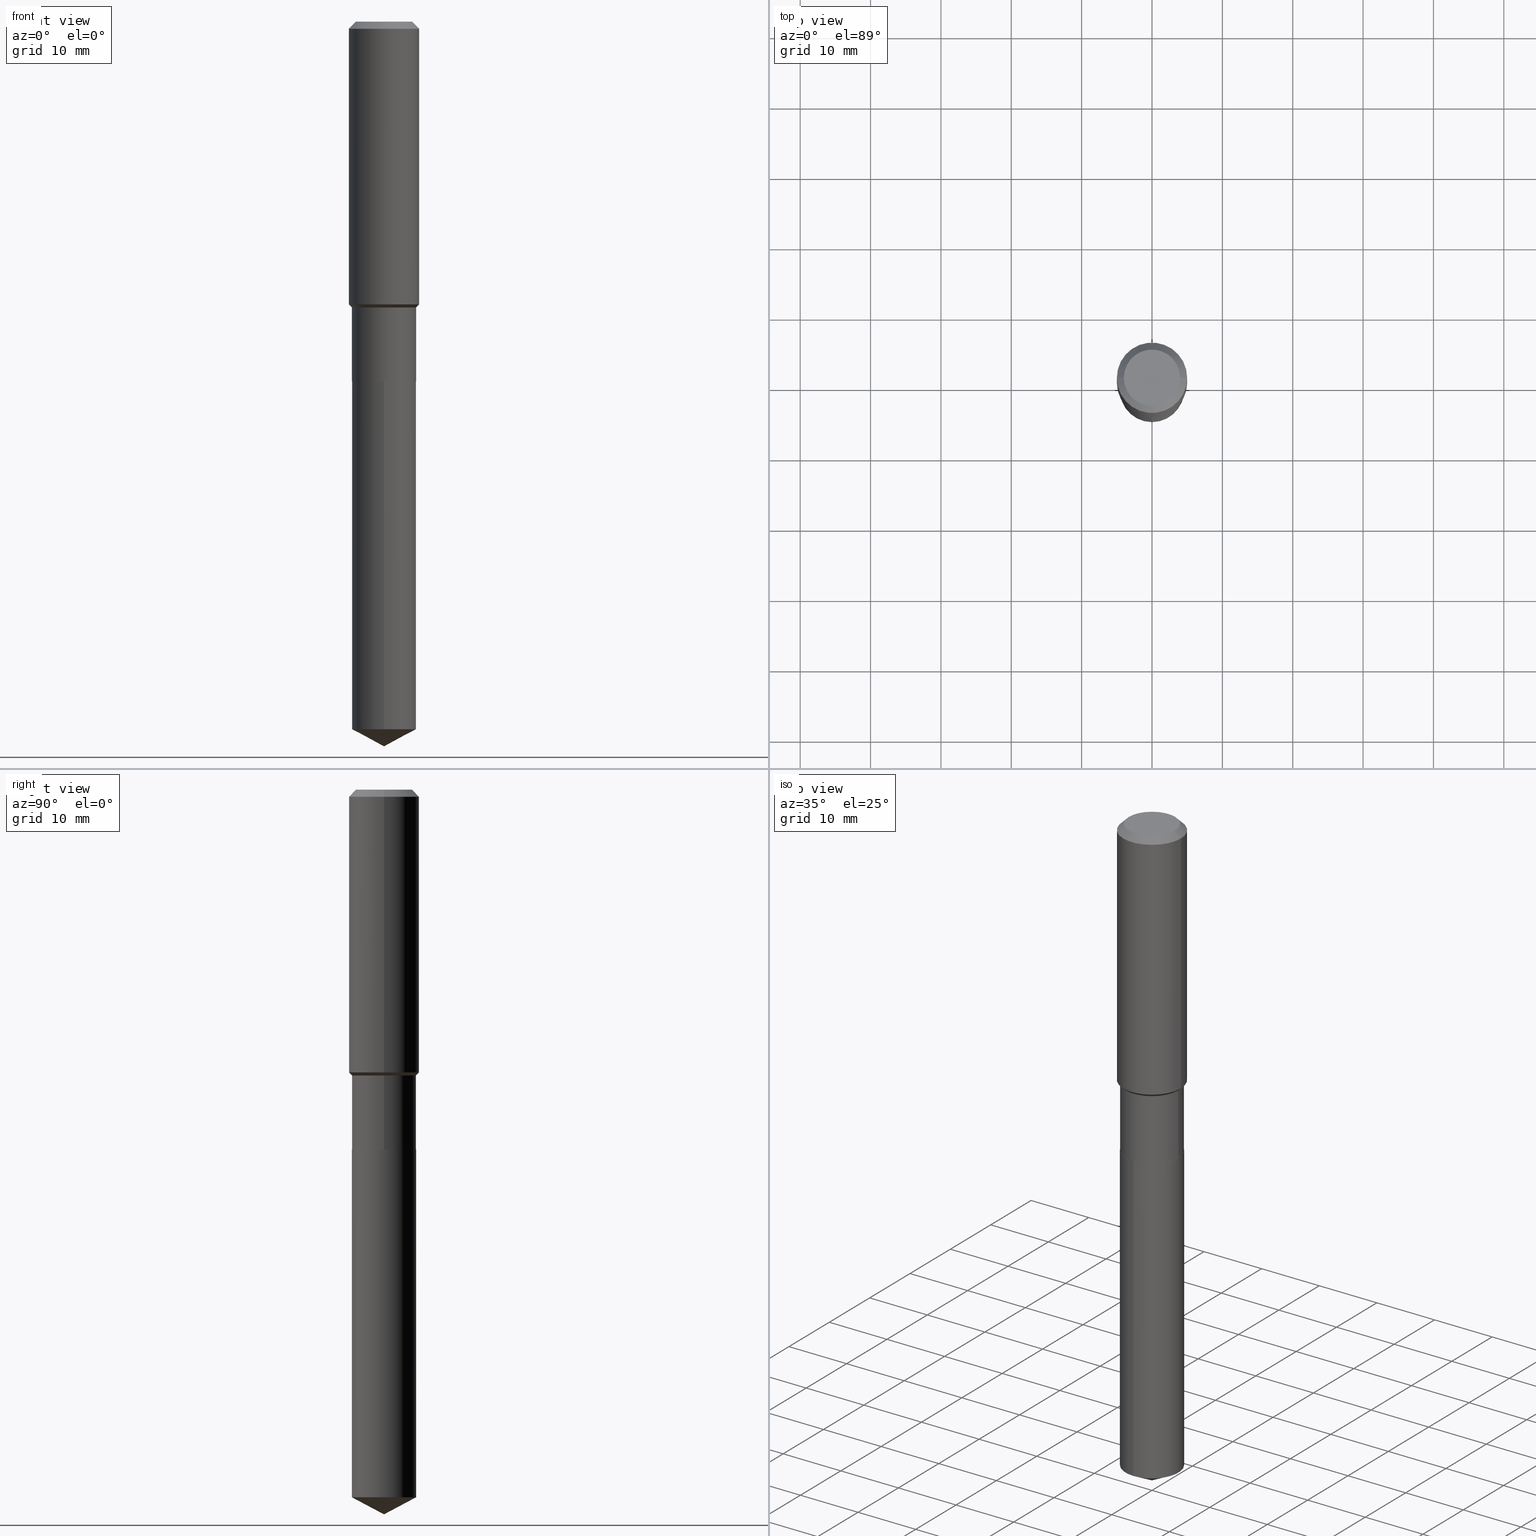
[diagram: canonical four-view strip — front | top / right | iso, engineering-drawing reading convention]
A machine part, canonical four-view strip (front | top / right | iso — engineering-drawing reading convention). The complete STEP part file that produces these views, byte-faithful:
ISO-10303-21;
HEADER;
FILE_DESCRIPTION (( 'STEP AP203' ),
    '1' );
FILE_NAME ('55179.STEP',
    '2024-04-24T16:55:08',
    ( '' ),
    ( '' ),
    'SwSTEP 2.0',
    'SolidWorks 2023',
    '' );
FILE_SCHEMA (( 'CONFIG_CONTROL_DESIGN' ));
ENDSEC;

DATA;
#1 = DIRECTION ( 'NONE',  ( -2.445537497902415833E-29, 3.491382968394312088E-15, 1.000000000000000000 ) ) ;
#2 = FACE_OUTER_BOUND ( 'NONE', #330, .T. ) ;
#3 = AXIS2_PLACEMENT_3D ( 'NONE', #290, #67, #219 ) ;
#4 = VECTOR ( 'NONE', #102, 39.37007874015748854 ) ;
#5 = CARTESIAN_POINT ( 'NONE',  ( -0.1574800000000000089, 1.168406772637159618E-15, 3.855188123707939751E-18 ) ) ;
#6 = FACE_OUTER_BOUND ( 'NONE', #246, .T. ) ;
#7 = EDGE_LOOP ( 'NONE', ( #128, #312, #198, #327 ) ) ;
#8 = EDGE_CURVE ( 'NONE', #383, #229, #275, .T. ) ;
#9 = ORIENTED_EDGE ( 'NONE', *, *, #104, .F. ) ;
#10 = AXIS2_PLACEMENT_3D ( 'NONE', #332, #336, #286 ) ;
#11 = FACE_OUTER_BOUND ( 'NONE', #125, .T. ) ;
#12 = EDGE_LOOP ( 'NONE', ( #277, #386, #78, #232 ) ) ;
#13 = EDGE_CURVE ( 'NONE', #380, #49, #65, .T. ) ;
#14 = EDGE_LOOP ( 'NONE', ( #308, #29, #270, #351 ) ) ;
#15 = CC_DESIGN_PERSON_AND_ORGANIZATION_ASSIGNMENT ( #368, #257, ( #379 ) ) ;
#16 = CARTESIAN_POINT ( 'NONE',  ( 3.868609377944575708E-29, -5.523348903982912472E-15, -1.581949999999999523 ) ) ;
#17 = EDGE_LOOP ( 'NONE', ( #397, #77, #426, #126 ) ) ;
#18 = LINE ( 'NONE', #63, #150 ) ;
#19 = CARTESIAN_POINT ( 'NONE',  ( 3.868609377944575708E-29, -5.523348903982912472E-15, -1.581949999999999523 ) ) ;
#20 = VECTOR ( 'NONE', #62, 39.37007874015748143 ) ;
#21 = EDGE_CURVE ( 'NONE', #205, #348, #305, .T. ) ;
#22 = LINE ( 'NONE', #174, #335 ) ;
#23 = DIRECTION ( 'NONE',  ( -1.000000000000000000, 6.982962677686265922E-15, -4.876176775795935793E-29 ) ) ;
#24 = CARTESIAN_POINT ( 'NONE',  ( 1.276845296160997054E-15, 0.1796999999999929765, -2.012399999999999967 ) ) ;
#25 = DIRECTION ( 'NONE',  ( -2.445537497902415833E-29, 3.491382968394312088E-15, 1.000000000000000000 ) ) ;
#26 = DIRECTION ( 'NONE',  ( 1.000000000000000000, -6.982962677686267499E-15, 0.000000000000000000 ) ) ;
#27 = CONICAL_SURFACE ( 'NONE', #73, 0.1796999999999999709, 0.7853981633974522758 ) ;
#28 = DATE_AND_TIME ( #31, #267 ) ;
#29 = ORIENTED_EDGE ( 'NONE', *, *, #420, .T. ) ;
#30 = DIRECTION ( 'NONE',  ( 6.273719981627756610E-15, 0.8829475928589284317, 0.4694715627858879192 ) ) ;
#31 = CALENDAR_DATE ( 2024, 24, 4 ) ;
#32 = CARTESIAN_POINT ( 'NONE',  ( 3.910549167970651288E-29, -5.583227808944072017E-15, -1.599099999999999522 ) ) ;
#33 = VECTOR ( 'NONE', #140, 39.37007874015748143 ) ;
#34 = PERSON_AND_ORGANIZATION ( #365, #40 ) ;
#35 = DIRECTION ( 'NONE',  ( 0.7071067811865503483, -2.468850131082286248E-15, 0.7071067811865446862 ) ) ;
#36 = DIRECTION ( 'NONE',  ( -2.445468806185136597E-29, 3.491481338843145583E-15, 1.000000000000000000 ) ) ;
#37 = EDGE_CURVE ( 'NONE', #428, #49, #284, .T. ) ;
#38 = CARTESIAN_POINT ( 'NONE',  ( 9.627810689950954155E-31, -1.374596203102556547E-16, -0.03937000000000029365 ) ) ;
#39 = VERTEX_POINT ( 'NONE', #240 ) ;
#40 = ORGANIZATION ( 'UNSPECIFIED', 'UNSPECIFIED', '' ) ;
#41 = LINE ( 'NONE', #127, #354 ) ;
#42 = ORIENTED_EDGE ( 'NONE', *, *, #157, .F. ) ;
#43 = ORIENTED_EDGE ( 'NONE', *, *, #424, .T. ) ;
#44 = UNCERTAINTY_MEASURE_WITH_UNIT (LENGTH_MEASURE( 1.000000000000000082E-05 ), #283, 'distance_accuracy_value', 'NONE');
#45 = ORIENTED_EDGE ( 'NONE', *, *, #21, .T. ) ;
#46 = ADVANCED_FACE ( 'NONE', ( #357 ), #103, .F. ) ;
#47 = CIRCLE ( 'NONE', #170, 0.1796999999999999986 ) ;
#48 = LOCAL_TIME ( 12, 55, 8.000000000000000000, #454 ) ;
#49 = VERTEX_POINT ( 'NONE', #474 ) ;
#50 = ORIENTED_EDGE ( 'NONE', *, *, #325, .F. ) ;
#51 = EDGE_CURVE ( 'NONE', #144, #346, #173, .T. ) ;
#52 = CYLINDRICAL_SURFACE ( 'NONE', #463, 0.1968500000000001082 ) ;
#53 = DIRECTION ( 'NONE',  ( -6.982962677686265922E-15, -1.000000000000000000, 3.040454083098790380E-15 ) ) ;
#54 = CARTESIAN_POINT ( 'NONE',  ( 3.910549167970651288E-29, -5.583227808944072017E-15, -1.599099999999999522 ) ) ;
#55 = EDGE_CURVE ( 'NONE', #348, #205, #47, .T. ) ;
#56 = ORIENTED_EDGE ( 'NONE', *, *, #104, .T. ) ;
#57 = AXIS2_PLACEMENT_3D ( 'NONE', #202, #347, #278 ) ;
#58 = PRODUCT_DEFINITION_FORMATION_WITH_SPECIFIED_SOURCE ( 'ANY', '', #143, .NOT_KNOWN. ) ;
#59 = DIRECTION ( 'NONE',  ( 1.000000000000000000, -6.982962677686266711E-15, 4.876176775795935793E-29 ) ) ;
#60 = DIRECTION ( 'NONE',  ( -6.982962677686265922E-15, -1.000000000000000000, 3.040454083098790380E-15 ) ) ;
#61 = DIRECTION ( 'NONE',  ( -2.445537497902415833E-29, 3.491382968394311693E-15, 1.000000000000000000 ) ) ;
#62 = DIRECTION ( 'NONE',  ( 0.7071067811865450192, -7.319954787623246579E-15, -0.7071067811865500152 ) ) ;
#63 = CARTESIAN_POINT ( 'NONE',  ( -0.1968500000000000250, 1.237136582792286225E-15, -0.03937000000000029365 ) ) ;
#64 = DIRECTION ( 'NONE',  ( -2.445468806185136597E-29, 3.491481338843145583E-15, 1.000000000000000000 ) ) ;
#65 = CIRCLE ( 'NONE', #188, 0.1968500000000000250 ) ;
#66 = ADVANCED_FACE ( 'NONE', ( #353 ), #394, .T. ) ;
#67 = DIRECTION ( 'NONE',  ( -2.445537497902415833E-29, 3.491382968394312088E-15, 1.000000000000000000 ) ) ;
#68 = DATE_TIME_ROLE ( 'creation_date' ) ;
#69 = CYLINDRICAL_SURFACE ( 'NONE', #201, 0.1796999999999999986 ) ;
#70 = COORDINATED_UNIVERSAL_TIME_OFFSET ( 5, 0, .BEHIND. ) ;
#71 = FACE_OUTER_BOUND ( 'NONE', #317, .T. ) ;
#72 = PRODUCT_RELATED_PRODUCT_CATEGORY ( 'detail', '', ( #143 ) ) ;
#73 = AXIS2_PLACEMENT_3D ( 'NONE', #75, #490, #153 ) ;
#74 = AXIS2_PLACEMENT_3D ( 'NONE', #54, #393, #142 ) ;
#75 = CARTESIAN_POINT ( 'NONE',  ( 3.910549167970651288E-29, -5.583227808944072017E-15, -1.599099999999999522 ) ) ;
#76 = DIRECTION ( 'NONE',  ( -2.445468806185136597E-29, 3.491481338843145583E-15, 1.000000000000000000 ) ) ;
#77 = ORIENTED_EDGE ( 'NONE', *, *, #300, .F. ) ;
#78 = ORIENTED_EDGE ( 'NONE', *, *, #471, .F. ) ;
#79 = AXIS2_PLACEMENT_3D ( 'NONE', #38, #341, #252 ) ;
#80 = AXIS2_PLACEMENT_3D ( 'NONE', #478, #166, #99 ) ;
#81 = EDGE_LOOP ( 'NONE', ( #45, #364 ) ) ;
#82 = EDGE_CURVE ( 'NONE', #144, #322, #333, .T. ) ;
#83 = ORIENTED_EDGE ( 'NONE', *, *, #101, .T. ) ;
#84 = ORIENTED_EDGE ( 'NONE', *, *, #21, .F. ) ;
#85 = CC_DESIGN_PERSON_AND_ORGANIZATION_ASSIGNMENT ( #145, #220, ( #58 ) ) ;
#86 = AXIS2_PLACEMENT_3D ( 'NONE', #338, #1, #340 ) ;
#87 = AXIS2_PLACEMENT_3D ( 'NONE', #316, #207, #210 ) ;
#88 = ORIENTED_EDGE ( 'NONE', *, *, #382, .T. ) ;
#89 = CARTESIAN_POINT ( 'NONE',  ( 9.916378083570590568E-29, -1.415795385822140002E-14, -4.054999999999999716 ) ) ;
#90 = DIRECTION ( 'NONE',  ( -2.445468806185136597E-29, 3.491481338843145583E-15, 1.000000000000000000 ) ) ;
#91 = EDGE_CURVE ( 'NONE', #390, #459, #180, .T. ) ;
#92 = PLANE ( 'NONE',  #196 ) ;
#93 = DIRECTION ( 'NONE',  ( -2.445468806185136597E-29, 3.491481338843145583E-15, 1.000000000000000000 ) ) ;
#94 = ADVANCED_BREP_SHAPE_REPRESENTATION ( '55179', ( #247, #255, #481 ), #324 ) ;
#95 = CARTESIAN_POINT ( 'NONE',  ( 1.276845296160949131E-15, 0.1796999999999929765, -2.012399999999999967 ) ) ;
#96 = AXIS2_PLACEMENT_3D ( 'NONE', #476, #97, #60 ) ;
#97 = DIRECTION ( 'NONE',  ( -2.445537497902415833E-29, 3.491382968394312088E-15, 1.000000000000000000 ) ) ;
#98 = LOCAL_TIME ( 12, 55, 8.000000000000000000, #152 ) ;
#99 = DIRECTION ( 'NONE',  ( 1.000000000000000000, -6.982962677686264344E-15, 0.000000000000000000 ) ) ;
#100 = DIRECTION ( 'NONE',  ( -2.445468806185136597E-29, 3.491481338843145583E-15, 1.000000000000000000 ) ) ;
#101 = EDGE_CURVE ( 'NONE', #49, #380, #461, .T. ) ;
#102 = DIRECTION ( 'NONE',  ( -6.165590087286826563E-15, -0.8829475928589252121, 0.4694715627858941365 ) ) ;
#103 = PLANE ( 'NONE',  #370 ) ;
#104 = EDGE_CURVE ( 'NONE', #229, #39, #289, .T. ) ;
#105 = APPROVAL_STATUS ( 'not_yet_approved' ) ;
#106 = CARTESIAN_POINT ( 'NONE',  ( 0.1968500000000001082, -1.374596203102542397E-15, 9.598753983154305062E-30 ) ) ;
#107 = CIRCLE ( 'NONE', #3, 0.1796999999999999986 ) ;
#108 = CC_DESIGN_APPROVAL ( #376, ( #58 ) ) ;
#109 = EDGE_CURVE ( 'NONE', #419, #423, #387, .T. ) ;
#110 = APPROVAL_STATUS ( 'not_yet_approved' ) ;
#111 = FACE_OUTER_BOUND ( 'NONE', #233, .T. ) ;
#112 = DATE_AND_TIME ( #263, #131 ) ;
#113 = FACE_OUTER_BOUND ( 'NONE', #399, .T. ) ;
#114 = ORIENTED_EDGE ( 'NONE', *, *, #261, .F. ) ;
#115 = COORDINATED_UNIVERSAL_TIME_OFFSET ( 5, 0, .BEHIND. ) ;
#116 = CARTESIAN_POINT ( 'NONE',  ( 0.1796999999999999709, -6.838066202124294536E-15, -1.599099999999999522 ) ) ;
#117 = AXIS2_PLACEMENT_3D ( 'NONE', #32, #444, #450 ) ;
#118 = CC_DESIGN_APPROVAL ( #401, ( #215 ) ) ;
#119 = APPROVAL_STATUS ( 'not_yet_approved' ) ;
#120 = DIRECTION ( 'NONE',  ( 1.000000000000000000, -6.982962677686264344E-15, 0.000000000000000000 ) ) ;
#121 = ORIENTED_EDGE ( 'NONE', *, *, #157, .T. ) ;
#122 = ORIENTED_EDGE ( 'NONE', *, *, #230, .T. ) ;
#123 = CIRCLE ( 'NONE', #315, 0.1574800000000000089 ) ;
#124 = DIRECTION ( 'NONE',  ( 1.000000000000000000, -6.982962677686265922E-15, 4.876223630392693006E-29 ) ) ;
#125 = EDGE_LOOP ( 'NONE', ( #121, #211, #84, #479 ) ) ;
#126 = ORIENTED_EDGE ( 'NONE', *, *, #13, .T. ) ;
#127 = CARTESIAN_POINT ( 'NONE',  ( -0.1796999999999999986, 1.276845296160900024E-15, -8.839326357188065585E-30 ) ) ;
#128 = ORIENTED_EDGE ( 'NONE', *, *, #82, .T. ) ;
#129 = CONICAL_SURFACE ( 'NONE', #86, 74.04434902938309904, 1.082104136236484049 ) ;
#130 =( LENGTH_UNIT ( ) NAMED_UNIT ( * ) SI_UNIT ( $, .METRE. ) );
#131 = LOCAL_TIME ( 12, 55, 8.000000000000000000, #189 ) ;
#132 = ORIENTED_EDGE ( 'NONE', *, *, #382, .F. ) ;
#133 = EDGE_CURVE ( 'NONE', #467, #390, #149, .T. ) ;
#134 = DIRECTION ( 'NONE',  ( 1.000000000000000000, -6.982962677686266711E-15, 4.876176775795935793E-29 ) ) ;
#135 = CARTESIAN_POINT ( 'NONE',  ( 4.920038691163875479E-29, -7.024511305618523739E-15, -2.011899999999999800 ) ) ;
#136 = CARTESIAN_POINT ( 'NONE',  ( 0.1574800000000000089, -1.284169937930321189E-15, 3.855188123724205385E-18 ) ) ;
#137 = CARTESIAN_POINT ( 'NONE',  ( 4.921261425566967720E-29, -7.026257046287944454E-15, -2.012399999999999523 ) ) ;
#138 = FACE_OUTER_BOUND ( 'NONE', #440, .T. ) ;
#139 = VECTOR ( 'NONE', #256, 39.37007874015748143 ) ;
#140 = DIRECTION ( 'NONE',  ( -0.7071067811865503483, 7.493145998870363626E-15, 0.7071067811865446862 ) ) ;
#141 = DIMENSIONAL_EXPONENTS ( 1.000000000000000000, 0.000000000000000000, 0.000000000000000000, 0.000000000000000000, 0.000000000000000000, 0.000000000000000000, 0.000000000000000000 ) ;
#142 = DIRECTION ( 'NONE',  ( 1.000000000000000000, -6.982962677686269077E-15, 0.000000000000000000 ) ) ;
#143 = PRODUCT ( '55179', '55179', '', ( #192 ) ) ;
#144 = VERTEX_POINT ( 'NONE', #221 ) ;
#145 = PERSON_AND_ORGANIZATION ( #365, #40 ) ;
#146 = DIRECTION ( 'NONE',  ( 2.445468806185136597E-29, -3.491481338843145583E-15, -1.000000000000000000 ) ) ;
#147 = EDGE_CURVE ( 'NONE', #346, #39, #190, .T. ) ;
#148 = APPLICATION_PROTOCOL_DEFINITION ( 'international standard', 'config_control_design', 1994, #400 ) ;
#149 = LINE ( 'NONE', #223, #224 ) ;
#150 = VECTOR ( 'NONE', #391, 39.37007874015748143 ) ;
#151 = ADVANCED_FACE ( 'NONE', ( #405 ), #258, .F. ) ;
#152 = COORDINATED_UNIVERSAL_TIME_OFFSET ( 5, 0, .BEHIND. ) ;
#153 = DIRECTION ( 'NONE',  ( 1.000000000000000000, -6.982962677686269077E-15, 0.000000000000000000 ) ) ;
#154 = DIRECTION ( 'NONE',  ( 1.000000000000000000, 0.000000000000000000, 0.000000000000000000 ) ) ;
#155 = DIRECTION ( 'NONE',  ( 1.000000000000000000, -6.982962677686265922E-15, 4.876176775795935232E-29 ) ) ;
#156 = CALENDAR_DATE ( 2024, 24, 4 ) ;
#157 = EDGE_CURVE ( 'NONE', #459, #390, #107, .T. ) ;
#158 = CARTESIAN_POINT ( 'NONE',  ( 0.1791999999999999982, -8.277603958129323177E-15, -2.012399999999999078 ) ) ;
#159 = CARTESIAN_POINT ( 'NONE',  ( 4.921261425566967159E-29, -7.026257046287943665E-15, -2.012399999999999078 ) ) ;
#160 = ORIENTED_EDGE ( 'NONE', *, *, #109, .F. ) ;
#161 = ORIENTED_EDGE ( 'NONE', *, *, #415, .T. ) ;
#162 = AXIS2_PLACEMENT_3D ( 'NONE', #279, #90, #178 ) ;
#163 = ADVANCED_FACE ( 'NONE', ( #2 ), #187, .T. ) ;
#164 = ORIENTED_EDGE ( 'NONE', *, *, #91, .F. ) ;
#165 = ORIENTED_EDGE ( 'NONE', *, *, #133, .F. ) ;
#166 = DIRECTION ( 'NONE',  ( -2.445468806185136597E-29, 3.491481338843145583E-15, 1.000000000000000000 ) ) ;
#167 = DESIGN_CONTEXT ( 'detailed design', #427, 'design' ) ;
#168 = CC_DESIGN_PERSON_AND_ORGANIZATION_ASSIGNMENT ( #489, #449, ( #215 ) ) ;
#169 = EDGE_LOOP ( 'NONE', ( #418, #160 ) ) ;
#170 = AXIS2_PLACEMENT_3D ( 'NONE', #137, #25, #432 ) ;
#171 = DIRECTION ( 'NONE',  ( -0.7071067811868130271, 7.493145998871311837E-15, 0.7071067811862817853 ) ) ;
#172 = LOCAL_TIME ( 12, 55, 8.000000000000000000, #115 ) ;
#173 = LINE ( 'NONE', #249, #209 ) ;
#174 = CARTESIAN_POINT ( 'NONE',  ( -0.1968500000000001082, 1.398703375343757985E-15, -9.682923725166787881E-30 ) ) ;
#175 = ORIENTED_EDGE ( 'NONE', *, *, #466, .T. ) ;
#176 = ADVANCED_FACE ( 'NONE', ( #448 ), #27, .T. ) ;
#177 = LINE ( 'NONE', #89, #4 ) ;
#178 = DIRECTION ( 'NONE',  ( 1.000000000000000000, -6.982962677686265922E-15, 4.876176775795935232E-29 ) ) ;
#179 = ADVANCED_FACE ( 'NONE', ( #111 ), #487, .T. ) ;
#180 = CIRCLE ( 'NONE', #437, 0.1796999999999999986 ) ;
#181 = CARTESIAN_POINT ( 'NONE',  ( -0.1796999999999999709, -4.306382512783172190E-15, -1.599099999999999522 ) ) ;
#182 = APPROVAL_DATE_TIME ( #259, #301 ) ;
#183 = CARTESIAN_POINT ( 'NONE',  ( 0.1968500000000000250, -1.487948651171581601E-15, -0.03937000000000029365 ) ) ;
#184 = DIRECTION ( 'NONE',  ( 1.000000000000000000, -6.982962677686264344E-15, 0.000000000000000000 ) ) ;
#185 = EDGE_CURVE ( 'NONE', #459, #205, #298, .T. ) ;
#186 = PERSON_AND_ORGANIZATION ( #365, #40 ) ;
#187 = CYLINDRICAL_SURFACE ( 'NONE', #280, 0.1796999999999999986 ) ;
#188 = AXIS2_PLACEMENT_3D ( 'NONE', #218, #100, #238 ) ;
#189 = COORDINATED_UNIVERSAL_TIME_OFFSET ( 5, 0, .BEHIND. ) ;
#190 = LINE ( 'NONE', #116, #488 ) ;
#191 = ADVANCED_FACE ( 'NONE', ( #71 ), #69, .T. ) ;
#192 = MECHANICAL_CONTEXT ( 'NONE', #400, 'mechanical' ) ;
#193 = DIRECTION ( 'NONE',  ( 1.000000000000000000, -6.982962677686265922E-15, 0.000000000000000000 ) ) ;
#194 = ADVANCED_FACE ( 'NONE', ( #408 ), #453, .T. ) ;
#195 = CARTESIAN_POINT ( 'NONE',  ( -1.254838393180172821E-15, -0.1797000000000070208, -2.012399999999999078 ) ) ;
#196 = AXIS2_PLACEMENT_3D ( 'NONE', #473, #274, #350 ) ;
#197 = ORIENTED_EDGE ( 'NONE', *, *, #91, .T. ) ;
#198 = ORIENTED_EDGE ( 'NONE', *, *, #265, .F. ) ;
#199 = CARTESIAN_POINT ( 'NONE',  ( -8.636448753564337300E-28, 1.232982664801986529E-13, 35.31507874015748172 ) ) ;
#200 = ORIENTED_EDGE ( 'NONE', *, *, #227, .T. ) ;
#201 = AXIS2_PLACEMENT_3D ( 'NONE', #372, #294, #155 ) ;
#202 = CARTESIAN_POINT ( 'NONE',  ( 4.921261425566967720E-29, -7.026257046287944454E-15, -2.012399999999999523 ) ) ;
#203 = ORIENTED_EDGE ( 'NONE', *, *, #466, .F. ) ;
#204 = FACE_OUTER_BOUND ( 'NONE', #14, .T. ) ;
#205 = VERTEX_POINT ( 'NONE', #451 ) ;
#206 = CC_DESIGN_PERSON_AND_ORGANIZATION_ASSIGNMENT ( #222, #373, ( #58 ) ) ;
#207 = DIRECTION ( 'NONE',  ( -2.445468806185136597E-29, 3.491481338843145583E-15, 1.000000000000000000 ) ) ;
#208 = ORIENTED_EDGE ( 'NONE', *, *, #300, .T. ) ;
#209 = VECTOR ( 'NONE', #361, 39.37007874015748143 ) ;
#210 = DIRECTION ( 'NONE',  ( 1.000000000000000000, -6.982962677686267499E-15, 0.000000000000000000 ) ) ;
#211 = ORIENTED_EDGE ( 'NONE', *, *, #457, .T. ) ;
#212 = ADVANCED_FACE ( 'NONE', ( #369 ), #323, .T. ) ;
#213 = DIRECTION ( 'NONE',  ( 1.000000000000000000, -6.982962677686265922E-15, 0.000000000000000000 ) ) ;
#214 = ORIENTED_EDGE ( 'NONE', *, *, #227, .F. ) ;
#215 = PRODUCT_DEFINITION ( 'UNKNOWN', '', #58, #167 ) ;
#216 = DIRECTION ( 'NONE',  ( 2.438088387897960049E-29, -3.491481338843145188E-15, -1.000000000000000000 ) ) ;
#217 = ADVANCED_FACE ( 'NONE', ( #113 ), #129, .T. ) ;
#218 = CARTESIAN_POINT ( 'NONE',  ( 9.627810689950954155E-31, -1.374596203102556547E-16, -0.03937000000000029365 ) ) ;
#219 = DIRECTION ( 'NONE',  ( -6.982962677686265922E-15, -1.000000000000000000, 3.040454083098790380E-15 ) ) ;
#220 = PERSON_AND_ORGANIZATION_ROLE ( 'design_supplier' ) ;
#221 = CARTESIAN_POINT ( 'NONE',  ( 0.1796999999999999986, -8.279349698798745469E-15, -2.011899999999999800 ) ) ;
#222 = PERSON_AND_ORGANIZATION ( #365, #40 ) ;
#223 = CARTESIAN_POINT ( 'NONE',  ( 9.916656978313564664E-29, -1.415755793683893419E-14, -4.054999999999999716 ) ) ;
#224 = VECTOR ( 'NONE', #30, 39.37007874015748143 ) ;
#225 = CIRCLE ( 'NONE', #87, 0.1796999999999999986 ) ;
#226 = CARTESIAN_POINT ( 'NONE',  ( -0.1968500000000002192, -4.124645528639153107E-15, -1.581949999999999523 ) ) ;
#227 = EDGE_CURVE ( 'NONE', #39, #49, #260, .T. ) ;
#228 = FACE_OUTER_BOUND ( 'NONE', #17, .T. ) ;
#229 = VERTEX_POINT ( 'NONE', #226 ) ;
#230 = EDGE_CURVE ( 'NONE', #423, #144, #374, .T. ) ;
#231 = ORIENTED_EDGE ( 'NONE', *, *, #325, .T. ) ;
#232 = ORIENTED_EDGE ( 'NONE', *, *, #147, .F. ) ;
#233 = EDGE_LOOP ( 'NONE', ( #469, #271, #122, #266 ) ) ;
#234 = CLOSED_SHELL ( 'NONE', ( #313, #217, #287, #163, #318 ) ) ;
#235 = AXIS2_PLACEMENT_3D ( 'NONE', #433, #311, #468 ) ;
#236 = EDGE_LOOP ( 'NONE', ( #203, #344, #83, #442 ) ) ;
#237 = CARTESIAN_POINT ( 'NONE',  ( 1.276845296160996857E-15, 0.1796999999999861763, -3.959451815130432539 ) ) ;
#238 = DIRECTION ( 'NONE',  ( 1.000000000000000000, -6.982962677686265922E-15, 0.000000000000000000 ) ) ;
#239 = CARTESIAN_POINT ( 'NONE',  ( -0.1796999999999999986, -5.027024261120398051E-15, -2.011899999999999800 ) ) ;
#240 = CARTESIAN_POINT ( 'NONE',  ( 0.1968500000000002192, -6.897945107085455658E-15, -1.581949999999999523 ) ) ;
#241 = AXIS2_PLACEMENT_3D ( 'NONE', #19, #93, #193 ) ;
#242 = APPROVAL_PERSON_ORGANIZATION ( #34, #301, #337 ) ;
#243 = CARTESIAN_POINT ( 'NONE',  ( -1.254838393180125292E-15, -0.1797000000000138209, -3.959451815130431207 ) ) ;
#244 = CC_DESIGN_DATE_AND_TIME_ASSIGNMENT ( #407, #68, ( #215 ) ) ;
#245 = CARTESIAN_POINT ( 'NONE',  ( -4.713871149261283817E-47, 6.730158695841841775E-33, 1.927594061857935365E-18 ) ) ;
#246 = EDGE_LOOP ( 'NONE', ( #165, #88, #164 ) ) ;
#247 = MANIFOLD_SOLID_BREP ( 'Body-Move/Copy2[1]', #234 ) ;
#248 = CYLINDRICAL_SURFACE ( 'NONE', #273, 0.1968500000000001082 ) ;
#249 = CARTESIAN_POINT ( 'NONE',  ( 0.1796999999999999986, -1.254838393180221928E-15, 8.762489666105295644E-30 ) ) ;
#250 = ADVANCED_FACE ( 'NONE', ( #228 ), #429, .T. ) ;
#251 = CONICAL_SURFACE ( 'NONE', #421, 74.04434902938309904, 1.082104136236484049 ) ;
#252 = DIRECTION ( 'NONE',  ( -1.000000000000000000, 6.982962677686265922E-15, 0.000000000000000000 ) ) ;
#253 = AXIS2_PLACEMENT_3D ( 'NONE', #16, #396, #213 ) ;
#254 = APPROVAL_ROLE ( '' ) ;
#255 = MANIFOLD_SOLID_BREP ( 'Body-Move/Copy2[2]', #314 ) ;
#256 = DIRECTION ( 'NONE',  ( -2.445537497902415833E-29, 3.491382968394311693E-15, 1.000000000000000000 ) ) ;
#257 = PERSON_AND_ORGANIZATION_ROLE ( 'classification_officer' ) ;
#258 = PLANE ( 'NONE',  #10 ) ;
#259 = DATE_AND_TIME ( #328, #172 ) ;
#260 = LINE ( 'NONE', #106, #470 ) ;
#261 = EDGE_CURVE ( 'NONE', #322, #383, #41, .T. ) ;
#262 = VECTOR ( 'NONE', #61, 39.37007874015748143 ) ;
#263 = CALENDAR_DATE ( 2024, 24, 4 ) ;
#264 = CARTESIAN_POINT ( 'NONE',  ( 9.627810689950954155E-31, -1.374596203102556547E-16, -0.03937000000000029365 ) ) ;
#265 = EDGE_CURVE ( 'NONE', #346, #383, #404, .T. ) ;
#266 = ORIENTED_EDGE ( 'NONE', *, *, #415, .F. ) ;
#267 = LOCAL_TIME ( 12, 55, 8.000000000000000000, #70 ) ;
#268 = VERTEX_POINT ( 'NONE', #5 ) ;
#269 = DIRECTION ( 'NONE',  ( 1.000000000000000000, -6.982962677686269077E-15, 0.000000000000000000 ) ) ;
#270 = ORIENTED_EDGE ( 'NONE', *, *, #82, .F. ) ;
#271 = ORIENTED_EDGE ( 'NONE', *, *, #109, .T. ) ;
#272 = AXIS2_PLACEMENT_3D ( 'NONE', #403, #64, #484 ) ;
#273 = AXIS2_PLACEMENT_3D ( 'NONE', #352, #435, #134 ) ;
#274 = DIRECTION ( 'NONE',  ( 2.445537497902415833E-29, -3.491382968394311693E-15, -1.000000000000000000 ) ) ;
#275 = LINE ( 'NONE', #181, #33 ) ;
#276 = CARTESIAN_POINT ( 'NONE',  ( 0.000000000000000000, 0.000000000000000000, 0.000000000000000000 ) ) ;
#277 = ORIENTED_EDGE ( 'NONE', *, *, #265, .T. ) ;
#278 = DIRECTION ( 'NONE',  ( -6.982962677686265922E-15, -1.000000000000000000, 3.040454083098790380E-15 ) ) ;
#279 = CARTESIAN_POINT ( 'NONE',  ( 0.000000000000000000, 0.000000000000000000, 0.000000000000000000 ) ) ;
#280 = AXIS2_PLACEMENT_3D ( 'NONE', #417, #486, #410 ) ;
#281 = CARTESIAN_POINT ( 'NONE',  ( 0.1796999999999999709, -6.838066202124294536E-15, -1.599099999999999522 ) ) ;
#282 = ORIENTED_EDGE ( 'NONE', *, *, #457, .F. ) ;
#283 =( CONVERSION_BASED_UNIT ( 'INCH', #482 ) LENGTH_UNIT ( ) NAMED_UNIT ( #141 ) );
#284 = LINE ( 'NONE', #183, #20 ) ;
#285 = DIRECTION ( 'NONE',  ( 0.000000000000000000, 0.000000000000000000, 1.000000000000000000 ) ) ;
#286 = DIRECTION ( 'NONE',  ( 1.000000000000000000, -6.982962677686265922E-15, 4.876176775795935793E-29 ) ) ;
#287 = ADVANCED_FACE ( 'NONE', ( #6 ), #251, .T. ) ;
#288 = PERSON_AND_ORGANIZATION_ROLE ( 'design_owner' ) ;
#289 = CIRCLE ( 'NONE', #241, 0.1968500000000002192 ) ;
#290 = CARTESIAN_POINT ( 'NONE',  ( 9.682849649827402638E-29, -1.382416059221556642E-14, -3.959451815130432095 ) ) ;
#291 = CIRCLE ( 'NONE', #235, 0.1574800000000000089 ) ;
#292 = ADVANCED_FACE ( 'NONE', ( #204 ), #438, .T. ) ;
#293 = PERSON_AND_ORGANIZATION ( #365, #40 ) ;
#294 = DIRECTION ( 'NONE',  ( -2.445468806185136597E-29, 3.491481338843145583E-15, 1.000000000000000000 ) ) ;
#295 = PERSON_AND_ORGANIZATION ( #365, #40 ) ;
#296 = DIRECTION ( 'NONE',  ( -1.000000000000000000, 6.982962677686265922E-15, 0.000000000000000000 ) ) ;
#297 = SECURITY_CLASSIFICATION_LEVEL ( 'unclassified' ) ;
#298 = LINE ( 'NONE', #195, #139 ) ;
#299 = VECTOR ( 'NONE', #455, 39.37007874015748854 ) ;
#300 = EDGE_CURVE ( 'NONE', #268, #428, #123, .T. ) ;
#301 = APPROVAL ( #119, 'UNSPECIFIED' ) ;
#302 = ORIENTED_EDGE ( 'NONE', *, *, #55, .F. ) ;
#303 = DIRECTION ( 'NONE',  ( -2.445537497902415833E-29, 3.491382968394312088E-15, 1.000000000000000000 ) ) ;
#304 = EDGE_LOOP ( 'NONE', ( #384, #231, #465, #9 ) ) ;
#305 = CIRCLE ( 'NONE', #96, 0.1796999999999999986 ) ;
#306 = CIRCLE ( 'NONE', #253, 0.1968500000000002192 ) ;
#307 = CARTESIAN_POINT ( 'NONE',  ( 3.910549167970651288E-29, -5.583227808944072017E-15, -1.599099999999999522 ) ) ;
#308 = ORIENTED_EDGE ( 'NONE', *, *, #477, .T. ) ;
#309 = DIRECTION ( 'NONE',  ( -6.982962677686265922E-15, -1.000000000000000000, 3.541896320645581774E-15 ) ) ;
#310 = ORIENTED_EDGE ( 'NONE', *, *, #101, .F. ) ;
#311 = DIRECTION ( 'NONE',  ( -2.445468806185136597E-29, 3.491481338843145583E-15, 1.000000000000000000 ) ) ;
#312 = ORIENTED_EDGE ( 'NONE', *, *, #261, .T. ) ;
#313 = ADVANCED_FACE ( 'NONE', ( #11 ), #385, .T. ) ;
#314 = CLOSED_SHELL ( 'NONE', ( #292, #194, #443, #212, #66, #191, #176, #349, #250, #46, #151, #179 ) ) ;
#315 = AXIS2_PLACEMENT_3D ( 'NONE', #343, #458, #124 ) ;
#316 = CARTESIAN_POINT ( 'NONE',  ( 4.920038691163875479E-29, -7.024511305618523739E-15, -2.011899999999999800 ) ) ;
#317 = EDGE_LOOP ( 'NONE', ( #114, #161, #320, #50 ) ) ;
#318 = ADVANCED_FACE ( 'NONE', ( #441 ), #92, .F. ) ;
#319 = CARTESIAN_POINT ( 'NONE',  ( -0.1968500000000000250, -1.431700886802825647E-15, -0.03937000000000029365 ) ) ;
#320 = ORIENTED_EDGE ( 'NONE', *, *, #51, .T. ) ;
#321 = CARTESIAN_POINT ( 'NONE',  ( 0.1791999999999999982, -8.277603958129323177E-15, -2.012399999999999078 ) ) ;
#322 = VERTEX_POINT ( 'NONE', #239 ) ;
#323 = CONICAL_SURFACE ( 'NONE', #117, 0.1796999999999999709, 0.7853981633974522758 ) ;
#324 =( GEOMETRIC_REPRESENTATION_CONTEXT ( 3 ) GLOBAL_UNCERTAINTY_ASSIGNED_CONTEXT ( ( #44 ) ) GLOBAL_UNIT_ASSIGNED_CONTEXT ( ( #283, #366, #331 ) ) REPRESENTATION_CONTEXT ( 'NONE', 'WORKASPACE' ) );
#325 = EDGE_CURVE ( 'NONE', #383, #346, #472, .T. ) ;
#326 = LINE ( 'NONE', #95, #262 ) ;
#327 = ORIENTED_EDGE ( 'NONE', *, *, #51, .F. ) ;
#328 = CALENDAR_DATE ( 2024, 24, 4 ) ;
#329 = CC_DESIGN_PERSON_AND_ORGANIZATION_ASSIGNMENT ( #186, #288, ( #143 ) ) ;
#330 = EDGE_LOOP ( 'NONE', ( #282, #197, #456, #302 ) ) ;
#331 =( NAMED_UNIT ( * ) SI_UNIT ( $, .STERADIAN. ) SOLID_ANGLE_UNIT ( ) );
#332 = CARTESIAN_POINT ( 'NONE',  ( 7.063523279905253016E-29, -3.958416140902921557E-15, -2.012399999999999523 ) ) ;
#333 = CIRCLE ( 'NONE', #445, 0.1796999999999999986 ) ;
#334 = CARTESIAN_POINT ( 'NONE',  ( 0.000000000000000000, 0.000000000000000000, 0.000000000000000000 ) ) ;
#335 = VECTOR ( 'NONE', #475, 39.37007874015748143 ) ;
#336 = DIRECTION ( 'NONE',  ( -2.438088387897960049E-29, 3.491481338843145188E-15, 1.000000000000000000 ) ) ;
#337 = APPROVAL_ROLE ( '' ) ;
#338 = CARTESIAN_POINT ( 'NONE',  ( -8.636448753564337300E-28, 1.232982664801986529E-13, 35.31507874015748172 ) ) ;
#339 = APPROVAL_DATE_TIME ( #485, #401 ) ;
#340 = DIRECTION ( 'NONE',  ( -6.982962677686265922E-15, -1.000000000000000000, 3.541896320645581774E-15 ) ) ;
#341 = DIRECTION ( 'NONE',  ( 2.445468806185136597E-29, -3.491481338843145583E-15, -1.000000000000000000 ) ) ;
#342 = APPROVAL_PERSON_ORGANIZATION ( #295, #376, #254 ) ;
#343 = CARTESIAN_POINT ( 'NONE',  ( -9.427742298522567634E-47, 1.346031739168368355E-32, 3.855188123715870730E-18 ) ) ;
#344 = ORIENTED_EDGE ( 'NONE', *, *, #37, .T. ) ;
#345 = ORIENTED_EDGE ( 'NONE', *, *, #133, .T. ) ;
#346 = VERTEX_POINT ( 'NONE', #281 ) ;
#347 = DIRECTION ( 'NONE',  ( -2.445537497902415833E-29, 3.491382968394312088E-15, 1.000000000000000000 ) ) ;
#348 = VERTEX_POINT ( 'NONE', #24 ) ;
#349 = ADVANCED_FACE ( 'NONE', ( #138 ), #52, .T. ) ;
#350 = DIRECTION ( 'NONE',  ( 6.982962677686265922E-15, 1.000000000000000000, -3.491382968394311693E-15 ) ) ;
#351 = ORIENTED_EDGE ( 'NONE', *, *, #230, .F. ) ;
#352 = CARTESIAN_POINT ( 'NONE',  ( 0.000000000000000000, 0.000000000000000000, 0.000000000000000000 ) ) ;
#353 = FACE_OUTER_BOUND ( 'NONE', #7, .T. ) ;
#354 = VECTOR ( 'NONE', #381, 39.37007874015748143 ) ;
#355 = AXIS2_PLACEMENT_3D ( 'NONE', #159, #377, #462 ) ;
#356 = LINE ( 'NONE', #360, #422 ) ;
#357 = FACE_OUTER_BOUND ( 'NONE', #436, .T. ) ;
#358 = CARTESIAN_POINT ( 'NONE',  ( -0.1796999999999999709, -5.027024261120398051E-15, -1.599099999999999522 ) ) ;
#359 = EDGE_LOOP ( 'NONE', ( #425, #43, #310, #214 ) ) ;
#360 = CARTESIAN_POINT ( 'NONE',  ( -0.1791999999999999982, -5.752964463805844736E-15, -2.012399999999999078 ) ) ;
#361 = DIRECTION ( 'NONE',  ( -2.445468806185136877E-29, 3.491481338843145188E-15, 1.000000000000000000 ) ) ;
#362 = AXIS2_PLACEMENT_3D ( 'NONE', #375, #76, #120 ) ;
#363 = APPROVAL_ROLE ( '' ) ;
#364 = ORIENTED_EDGE ( 'NONE', *, *, #55, .T. ) ;
#365 = PERSON ( 'UNSPECIFIED', 'UNSPECIFIED', 'UNSPECIFIED', ('UNSPECIFIED'), ('UNSPECIFIED'), ('UNSPECIFIED') ) ;
#366 =( NAMED_UNIT ( * ) PLANE_ANGLE_UNIT ( ) SI_UNIT ( $, .RADIAN. ) );
#367 = CARTESIAN_POINT ( 'NONE',  ( 4.921261425566967159E-29, -7.026257046287943665E-15, -2.012399999999999078 ) ) ;
#368 = PERSON_AND_ORGANIZATION ( #365, #40 ) ;
#369 = FACE_OUTER_BOUND ( 'NONE', #12, .T. ) ;
#370 = AXIS2_PLACEMENT_3D ( 'NONE', #245, #216, #23 ) ;
#371 = DATE_TIME_ROLE ( 'classification_date' ) ;
#372 = CARTESIAN_POINT ( 'NONE',  ( 0.000000000000000000, 0.000000000000000000, 0.000000000000000000 ) ) ;
#373 = PERSON_AND_ORGANIZATION_ROLE ( 'creator' ) ;
#374 = LINE ( 'NONE', #158, #299 ) ;
#375 = CARTESIAN_POINT ( 'NONE',  ( 4.921261425566967159E-29, -7.026257046287943665E-15, -2.012399999999999078 ) ) ;
#376 = APPROVAL ( #110, 'UNSPECIFIED' ) ;
#377 = DIRECTION ( 'NONE',  ( -2.445468806185136597E-29, 3.491481338843145583E-15, 1.000000000000000000 ) ) ;
#378 = AXIS2_PLACEMENT_3D ( 'NONE', #307, #389, #269 ) ;
#379 = SECURITY_CLASSIFICATION ( '', '', #297 ) ;
#380 = VERTEX_POINT ( 'NONE', #319 ) ;
#381 = DIRECTION ( 'NONE',  ( -2.445468806185136877E-29, 3.491481338843145188E-15, 1.000000000000000000 ) ) ;
#382 = EDGE_CURVE ( 'NONE', #467, #459, #177, .T. ) ;
#383 = VERTEX_POINT ( 'NONE', #358 ) ;
#384 = ORIENTED_EDGE ( 'NONE', *, *, #8, .F. ) ;
#385 = CYLINDRICAL_SURFACE ( 'NONE', #57, 0.1796999999999999986 ) ;
#386 = ORIENTED_EDGE ( 'NONE', *, *, #8, .T. ) ;
#387 = CIRCLE ( 'NONE', #395, 0.1791999999999999982 ) ;
#388 = CC_DESIGN_APPROVAL ( #301, ( #379 ) ) ;
#389 = DIRECTION ( 'NONE',  ( -2.445468806185136597E-29, 3.491481338843145583E-15, 1.000000000000000000 ) ) ;
#390 = VERTEX_POINT ( 'NONE', #237 ) ;
#391 = DIRECTION ( 'NONE',  ( -0.7071067811865450192, 2.468850131082230634E-15, -0.7071067811865500152 ) ) ;
#392 = DIRECTION ( 'NONE',  ( -2.445468806185136597E-29, 3.491481338843145583E-15, 1.000000000000000000 ) ) ;
#393 = DIRECTION ( 'NONE',  ( -2.445468806185136597E-29, 3.491481338843145583E-15, 1.000000000000000000 ) ) ;
#394 = CYLINDRICAL_SURFACE ( 'NONE', #162, 0.1796999999999999986 ) ;
#395 = AXIS2_PLACEMENT_3D ( 'NONE', #367, #36, #184 ) ;
#396 = DIRECTION ( 'NONE',  ( -2.445468806185136597E-29, 3.491481338843145583E-15, 1.000000000000000000 ) ) ;
#397 = ORIENTED_EDGE ( 'NONE', *, *, #37, .F. ) ;
#398 = FACE_OUTER_BOUND ( 'NONE', #359, .T. ) ;
#399 = EDGE_LOOP ( 'NONE', ( #132, #345, #42 ) ) ;
#400 = APPLICATION_CONTEXT ( 'configuration controlled 3d designs of mechanical parts and assemblies' ) ;
#401 = APPROVAL ( #105, 'UNSPECIFIED' ) ;
#402 = CARTESIAN_POINT ( 'NONE',  ( 9.916654553994295568E-29, -1.415755793683893419E-14, -4.054999999999999716 ) ) ;
#403 = CARTESIAN_POINT ( 'NONE',  ( 9.627810689950954155E-31, -1.374596203102556547E-16, -0.03937000000000029365 ) ) ;
#404 = CIRCLE ( 'NONE', #378, 0.1796999999999999709 ) ;
#405 = FACE_OUTER_BOUND ( 'NONE', #169, .T. ) ;
#406 = EDGE_CURVE ( 'NONE', #268, #380, #18, .T. ) ;
#407 = DATE_AND_TIME ( #447, #98 ) ;
#408 = FACE_OUTER_BOUND ( 'NONE', #236, .T. ) ;
#409 = APPROVAL_DATE_TIME ( #112, #376 ) ;
#410 = DIRECTION ( 'NONE',  ( -6.982962677686265922E-15, -1.000000000000000000, 3.040454083098790380E-15 ) ) ;
#411 = ORIENTED_EDGE ( 'NONE', *, *, #424, .F. ) ;
#412 = SHAPE_DEFINITION_REPRESENTATION ( #452, #94 ) ;
#413 = CIRCLE ( 'NONE', #80, 0.1791999999999999982 ) ;
#414 = DIRECTION ( 'NONE',  ( -2.445468806185136877E-29, 3.491481338843145188E-15, 1.000000000000000000 ) ) ;
#415 = EDGE_CURVE ( 'NONE', #322, #144, #225, .T. ) ;
#416 = APPLICATION_PROTOCOL_DEFINITION ( 'international standard', 'config_control_design', 1994, #427 ) ;
#417 = CARTESIAN_POINT ( 'NONE',  ( 4.921261425566967720E-29, -7.026257046287944454E-15, -2.012399999999999523 ) ) ;
#418 = ORIENTED_EDGE ( 'NONE', *, *, #477, .F. ) ;
#419 = VERTEX_POINT ( 'NONE', #439 ) ;
#420 = EDGE_CURVE ( 'NONE', #419, #322, #356, .T. ) ;
#421 = AXIS2_PLACEMENT_3D ( 'NONE', #199, #303, #309 ) ;
#422 = VECTOR ( 'NONE', #171, 39.37007874015748854 ) ;
#423 = VERTEX_POINT ( 'NONE', #321 ) ;
#424 = EDGE_CURVE ( 'NONE', #229, #380, #22, .T. ) ;
#425 = ORIENTED_EDGE ( 'NONE', *, *, #471, .T. ) ;
#426 = ORIENTED_EDGE ( 'NONE', *, *, #406, .T. ) ;
#427 = APPLICATION_CONTEXT ( 'configuration controlled 3d designs of mechanical parts and assemblies' ) ;
#428 = VERTEX_POINT ( 'NONE', #136 ) ;
#429 = CONICAL_SURFACE ( 'NONE', #79, 0.1968500000000000250, 0.7853981633974447263 ) ;
#430 = APPROVAL_PERSON_ORGANIZATION ( #293, #401, #363 ) ;
#431 = DIRECTION ( 'NONE',  ( -2.445468806185136597E-29, 3.491481338843145583E-15, 1.000000000000000000 ) ) ;
#432 = DIRECTION ( 'NONE',  ( -6.982962677686265922E-15, -1.000000000000000000, 3.040454083098790380E-15 ) ) ;
#433 = CARTESIAN_POINT ( 'NONE',  ( -9.427742298522567634E-47, 1.346031739168368355E-32, 3.855188123715870730E-18 ) ) ;
#434 = CARTESIAN_POINT ( 'NONE',  ( 9.682849649827402638E-29, -1.382416059221556642E-14, -3.959451815130432095 ) ) ;
#435 = DIRECTION ( 'NONE',  ( -2.445468806185136597E-29, 3.491481338843145583E-15, 1.000000000000000000 ) ) ;
#436 = EDGE_LOOP ( 'NONE', ( #208, #175 ) ) ;
#437 = AXIS2_PLACEMENT_3D ( 'NONE', #434, #483, #53 ) ;
#438 = CONICAL_SURFACE ( 'NONE', #355, 0.1791999999999999982, 0.7853981633978239785 ) ;
#439 = CARTESIAN_POINT ( 'NONE',  ( -0.1791999999999999982, -5.750315236631734324E-15, -2.012399999999999078 ) ) ;
#440 = EDGE_LOOP ( 'NONE', ( #411, #56, #200, #464 ) ) ;
#441 = FACE_OUTER_BOUND ( 'NONE', #81, .T. ) ;
#442 = ORIENTED_EDGE ( 'NONE', *, *, #406, .F. ) ;
#443 = ADVANCED_FACE ( 'NONE', ( #398 ), #248, .T. ) ;
#444 = DIRECTION ( 'NONE',  ( -2.445468806185136597E-29, 3.491481338843145583E-15, 1.000000000000000000 ) ) ;
#445 = AXIS2_PLACEMENT_3D ( 'NONE', #135, #392, #26 ) ;
#446 = CC_DESIGN_SECURITY_CLASSIFICATION ( #379, ( #58 ) ) ;
#447 = CALENDAR_DATE ( 2024, 24, 4 ) ;
#448 = FACE_OUTER_BOUND ( 'NONE', #304, .T. ) ;
#449 = PERSON_AND_ORGANIZATION_ROLE ( 'creator' ) ;
#450 = DIRECTION ( 'NONE',  ( 1.000000000000000000, -6.982962677686269077E-15, 0.000000000000000000 ) ) ;
#451 = CARTESIAN_POINT ( 'NONE',  ( -1.254838393180172821E-15, -0.1797000000000070208, -2.012399999999999078 ) ) ;
#452 = PRODUCT_DEFINITION_SHAPE ( 'NONE', 'NONE',  #215 ) ;
#453 = CONICAL_SURFACE ( 'NONE', #480, 0.1968500000000000250, 0.7853981633974447263 ) ;
#454 = COORDINATED_UNIVERSAL_TIME_OFFSET ( 5, 0, .BEHIND. ) ;
#455 = DIRECTION ( 'NONE',  ( 0.7071067811868130271, -2.468850131085038979E-15, 0.7071067811862817853 ) ) ;
#456 = ORIENTED_EDGE ( 'NONE', *, *, #185, .T. ) ;
#457 = EDGE_CURVE ( 'NONE', #390, #348, #326, .T. ) ;
#458 = DIRECTION ( 'NONE',  ( -2.445468806185136597E-29, 3.491481338843145583E-15, 1.000000000000000000 ) ) ;
#459 = VERTEX_POINT ( 'NONE', #243 ) ;
#460 = CC_DESIGN_DATE_AND_TIME_ASSIGNMENT ( #28, #371, ( #379 ) ) ;
#461 = CIRCLE ( 'NONE', #272, 0.1968500000000000250 ) ;
#462 = DIRECTION ( 'NONE',  ( 1.000000000000000000, -6.982962677686264344E-15, 0.000000000000000000 ) ) ;
#463 = AXIS2_PLACEMENT_3D ( 'NONE', #276, #431, #59 ) ;
#464 = ORIENTED_EDGE ( 'NONE', *, *, #13, .F. ) ;
#465 = ORIENTED_EDGE ( 'NONE', *, *, #147, .T. ) ;
#466 = EDGE_CURVE ( 'NONE', #428, #268, #291, .T. ) ;
#467 = VERTEX_POINT ( 'NONE', #402 ) ;
#468 = DIRECTION ( 'NONE',  ( 1.000000000000000000, -6.982962677686265922E-15, 4.876223630392693006E-29 ) ) ;
#469 = ORIENTED_EDGE ( 'NONE', *, *, #420, .F. ) ;
#470 = VECTOR ( 'NONE', #414, 39.37007874015748143 ) ;
#471 = EDGE_CURVE ( 'NONE', #39, #229, #306, .T. ) ;
#472 = CIRCLE ( 'NONE', #74, 0.1796999999999999709 ) ;
#473 = CARTESIAN_POINT ( 'NONE',  ( 4.921261425566967720E-29, -7.026257046287944454E-15, -2.012399999999999523 ) ) ;
#474 = CARTESIAN_POINT ( 'NONE',  ( 0.1968500000000000250, -1.512055823412797189E-15, -0.03937000000000029365 ) ) ;
#475 = DIRECTION ( 'NONE',  ( -2.445468806185136877E-29, 3.491481338843145188E-15, 1.000000000000000000 ) ) ;
#476 = CARTESIAN_POINT ( 'NONE',  ( 4.921261425566967720E-29, -7.026257046287944454E-15, -2.012399999999999523 ) ) ;
#477 = EDGE_CURVE ( 'NONE', #423, #419, #413, .T. ) ;
#478 = CARTESIAN_POINT ( 'NONE',  ( 4.921261425566967159E-29, -7.026257046287943665E-15, -2.012399999999999078 ) ) ;
#479 = ORIENTED_EDGE ( 'NONE', *, *, #185, .F. ) ;
#480 = AXIS2_PLACEMENT_3D ( 'NONE', #264, #146, #296 ) ;
#481 = AXIS2_PLACEMENT_3D ( 'NONE', #334, #285, #154 ) ;
#482 = LENGTH_MEASURE_WITH_UNIT ( LENGTH_MEASURE( 0.02539999999999999897 ), #130 );
#483 = DIRECTION ( 'NONE',  ( -2.445537497902415833E-29, 3.491382968394312088E-15, 1.000000000000000000 ) ) ;
#484 = DIRECTION ( 'NONE',  ( 1.000000000000000000, -6.982962677686265922E-15, 0.000000000000000000 ) ) ;
#485 = DATE_AND_TIME ( #156, #48 ) ;
#486 = DIRECTION ( 'NONE',  ( -2.445537497902415833E-29, 3.491382968394312088E-15, 1.000000000000000000 ) ) ;
#487 = CONICAL_SURFACE ( 'NONE', #362, 0.1791999999999999982, 0.7853981633978239785 ) ;
#488 = VECTOR ( 'NONE', #35, 39.37007874015748143 ) ;
#489 = PERSON_AND_ORGANIZATION ( #365, #40 ) ;
#490 = DIRECTION ( 'NONE',  ( -2.445468806185136597E-29, 3.491481338843145583E-15, 1.000000000000000000 ) ) ;
ENDSEC;
END-ISO-10303-21;
